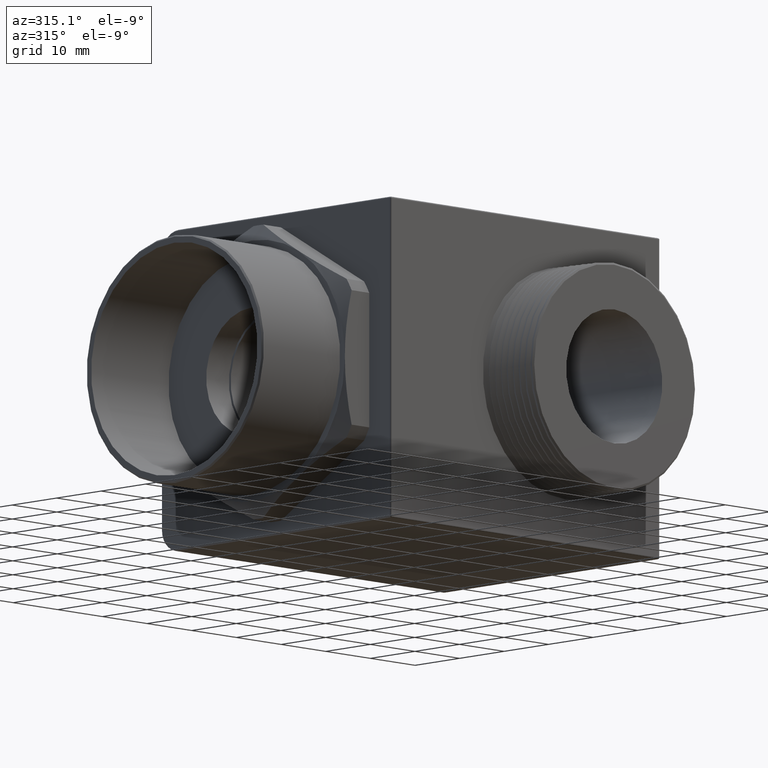
[diagram: clean part render]
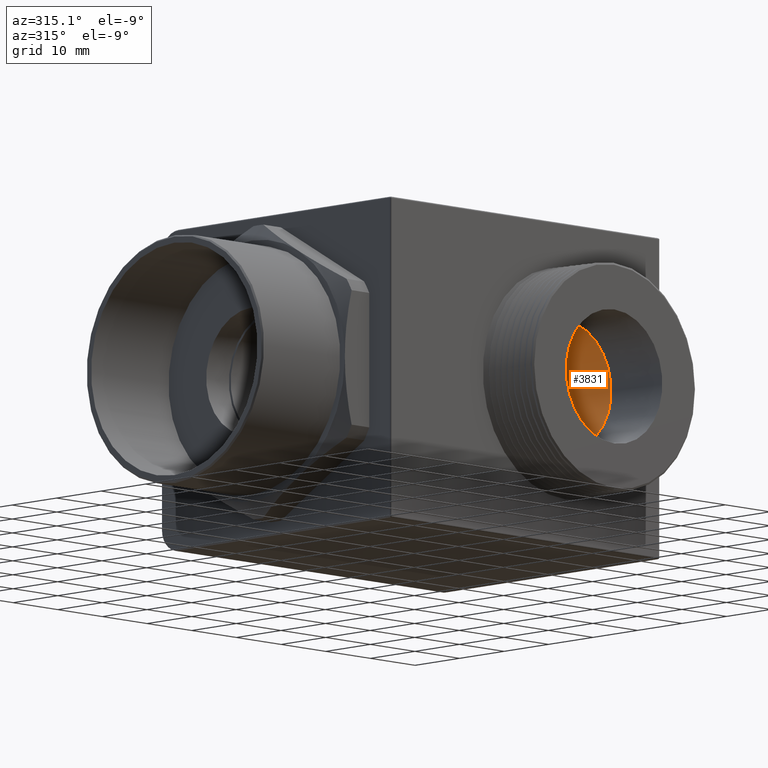
[diagram: same view with one face highlighted and labeled with its STEP entity id]
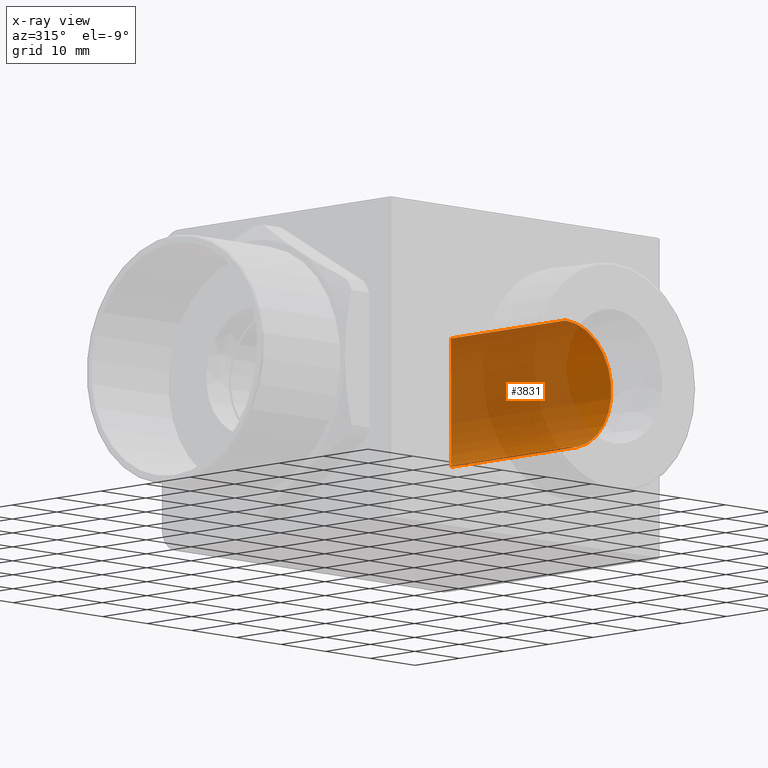
[diagram: x-ray of the same camera — body ghosted, the highlighted face saturated]
A machine part, auxiliary view. The second image highlights one B-rep face of the part: STEP entity #3831.
The next image is the same camera in x-ray: the body ghosted, the highlighted face saturated — about 83% of this face is hidden behind the body in this view.
In plain terms, the highlighted cylindrical surface (partial cylindrical patch) has radius 10.1981 mm, axis along (0, -1, 0).
Its self-contained STEP definition (entity closure, byte-faithful):
#102 = CARTESIAN_POINT ( 'NONE',  ( 1.112449999999999900, 0.0000000000000000000, -0.4014999999999999100 ) ) ;
#103 = CARTESIAN_POINT ( 'NONE',  ( 1.112449999999999900, 0.0000000000000000000, 0.4014999999999999100 ) ) ;
#824 = DIRECTION ( 'NONE',  ( 0.0000000000000000000, 0.0000000000000000000, -1.000000000000000000 ) ) ;
#825 = DIRECTION ( 'NONE',  ( 0.0000000000000000000, -1.000000000000000000, 0.0000000000000000000 ) ) ;
#826 = CARTESIAN_POINT ( 'NONE',  ( 1.112449999999999900, -1.014999999999997200, -2.785979454945908300E-017 ) ) ;
#827 = AXIS2_PLACEMENT_3D ( 'NONE', #826, #825, #824 ) ;
#828 = CIRCLE ( 'NONE', #827, 0.4014999999999999100 ) ;
#975 =( BOUNDED_CURVE ( )  B_SPLINE_CURVE ( 3, ( #1030, #1029, #1028, #1027 ),
 .UNSPECIFIED., .F., .F. ) 
 B_SPLINE_CURVE_WITH_KNOTS ( ( 4, 4 ),
 ( 1.570796326794896600, 4.712388980384689700 ),
 .UNSPECIFIED. ) 
 CURVE ( )  GEOMETRIC_REPRESENTATION_ITEM ( )  RATIONAL_B_SPLINE_CURVE ( ( 1.000000000000000000, 0.3333333333333333100, 0.3333333333333333100, 1.000000000000000000 ) ) 
 REPRESENTATION_ITEM ( '' )  );
#1006 = DIRECTION ( 'NONE',  ( 0.0000000000000000000, 0.0000000000000000000, -1.000000000000000000 ) ) ;
#1007 = DIRECTION ( 'NONE',  ( 0.0000000000000000000, -1.000000000000000000, 0.0000000000000000000 ) ) ;
#1008 = CARTESIAN_POINT ( 'NONE',  ( 1.112449999999999900, 0.0000000000000000000, 0.0000000000000000000 ) ) ;
#1009 = AXIS2_PLACEMENT_3D ( 'NONE', #1008, #1007, #1006 ) ;
#1011 = CYLINDRICAL_SURFACE ( 'NONE', #1009, 0.4014999999999999100 ) ;
#1012 = FACE_OUTER_BOUND ( 'NONE', #3817, .T. ) ;
#1027 = CARTESIAN_POINT ( 'NONE',  ( 1.112449999999999900, 0.0000000000000000000, 0.4014999999999999100 ) ) ;
#1028 = CARTESIAN_POINT ( 'NONE',  ( 1.915449999999999900, 0.8029999999999998300, 0.4014999999999998600 ) ) ;
#1029 = CARTESIAN_POINT ( 'NONE',  ( 1.915449999999999900, 0.8029999999999998300, -0.4015000000000000800 ) ) ;
#1030 = CARTESIAN_POINT ( 'NONE',  ( 1.112449999999999900, 0.0000000000000000000, -0.4014999999999999100 ) ) ;
#1353 = EDGE_CURVE ( 'NONE', #1873, #1355, #2555, .T. ) ;
#1354 = EDGE_CURVE ( 'NONE', #1872, #1414, #2551, .T. ) ;
#1355 = VERTEX_POINT ( 'NONE', #2547 ) ;
#1414 = VERTEX_POINT ( 'NONE', #2636 ) ;
#1872 = VERTEX_POINT ( 'NONE', #103 ) ;
#1873 = VERTEX_POINT ( 'NONE', #102 ) ;
#2547 = CARTESIAN_POINT ( 'NONE',  ( 1.112449999999999900, -1.014999999999997200, -0.4014999999999999100 ) ) ;
#2548 = DIRECTION ( 'NONE',  ( 0.0000000000000000000, -1.000000000000000000, 0.0000000000000000000 ) ) ;
#2549 = VECTOR ( 'NONE', #2548, 39.37007874015748100 ) ;
#2550 = CARTESIAN_POINT ( 'NONE',  ( 1.112449999999999900, 0.0000000000000000000, 0.4014999999999999100 ) ) ;
#2551 = LINE ( 'NONE', #2550, #2549 ) ;
#2552 = DIRECTION ( 'NONE',  ( 0.0000000000000000000, -1.000000000000000000, 0.0000000000000000000 ) ) ;
#2553 = VECTOR ( 'NONE', #2552, 39.37007874015748100 ) ;
#2554 = CARTESIAN_POINT ( 'NONE',  ( 1.112449999999999900, 0.0000000000000000000, -0.4014999999999999100 ) ) ;
#2555 = LINE ( 'NONE', #2554, #2553 ) ;
#2636 = CARTESIAN_POINT ( 'NONE',  ( 1.112449999999999900, -1.014999999999997200, 0.4014999999999999100 ) ) ;
#3714 = EDGE_CURVE ( 'NONE', #1355, #1414, #828, .T. ) ;
#3812 = ORIENTED_EDGE ( 'NONE', *, *, #1353, .T. ) ;
#3813 = ORIENTED_EDGE ( 'NONE', *, *, #1354, .F. ) ;
#3814 = EDGE_CURVE ( 'NONE', #1873, #1872, #975, .T. ) ;
#3815 = ORIENTED_EDGE ( 'NONE', *, *, #3814, .F. ) ;
#3816 = ORIENTED_EDGE ( 'NONE', *, *, #3714, .T. ) ;
#3817 = EDGE_LOOP ( 'NONE', ( #3813, #3815, #3812, #3816 ) ) ;
#3831 = ADVANCED_FACE ( 'NONE', ( #1012 ), #1011, .F. ) ;